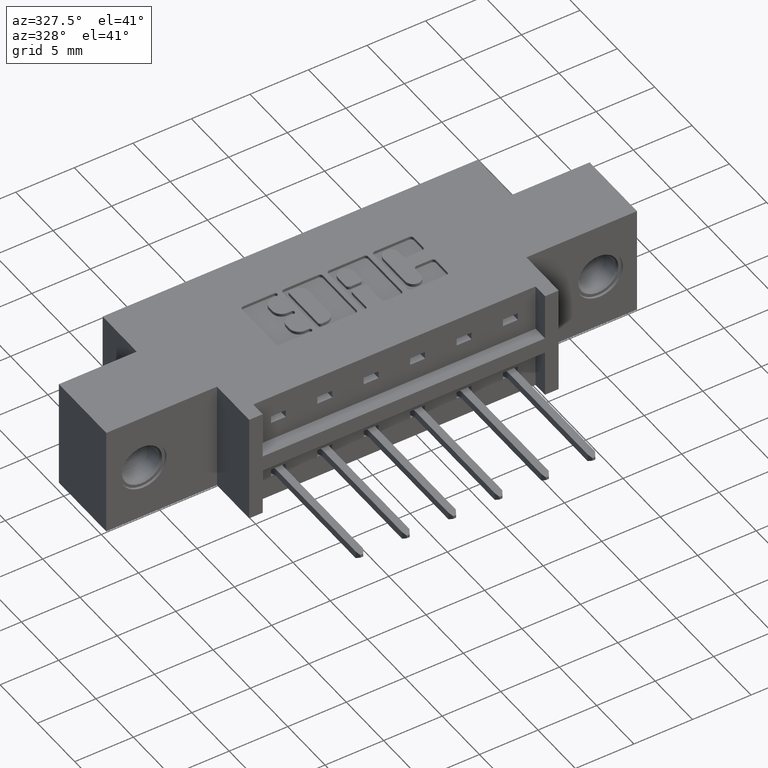
[diagram: clean part render]
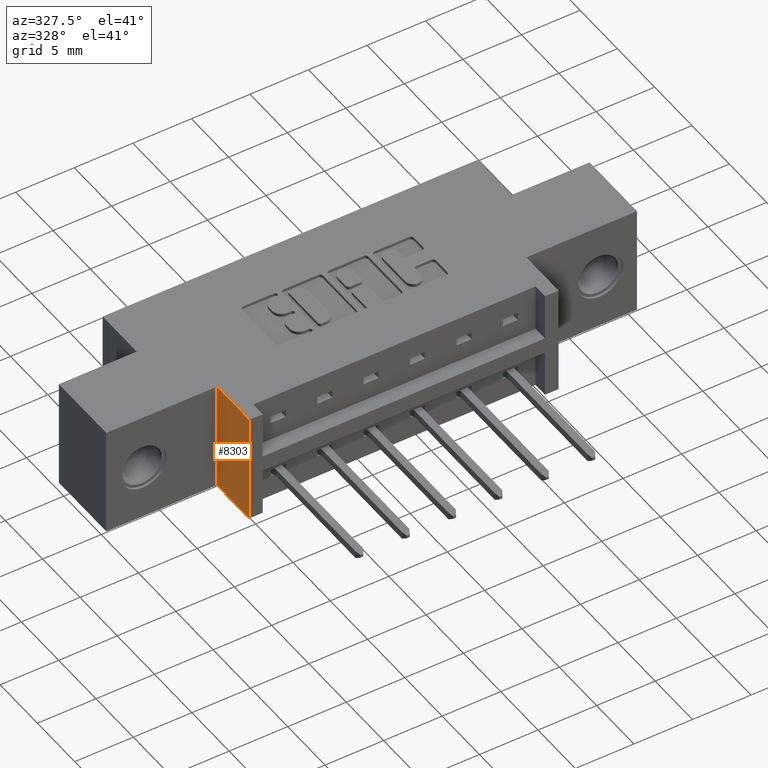
[diagram: same view with one face highlighted and labeled with its STEP entity id]
A machine part, auxiliary view. The second image highlights one B-rep face of the part: STEP entity #8303.
In plain terms, the highlighted planar face has unit normal (1, 0, -0).
Its self-contained STEP definition (entity closure, byte-faithful):
#32 = CARTESIAN_POINT ( 'NONE',  ( 0.3720000000000002700, 0.0000000000000000000, 2.303612362224999500E-015 ) ) ;
#258 = EDGE_CURVE ( 'NONE', #4536, #4793, #8366, .T. ) ;
#510 = DIRECTION ( 'NONE',  ( 4.430023773509614800E-015, 0.0000000000000000000, 1.000000000000000000 ) ) ;
#561 = EDGE_CURVE ( 'NONE', #5541, #4793, #1787, .T. ) ;
#679 = DIRECTION ( 'NONE',  ( 4.430023773509614800E-015, 0.0000000000000000000, 1.000000000000000000 ) ) ;
#719 = DIRECTION ( 'NONE',  ( 1.000000000000000000, 0.0000000000000000000, -4.430023773509614800E-015 ) ) ;
#759 = ORIENTED_EDGE ( 'NONE', *, *, #5513, .T. ) ;
#1228 = CARTESIAN_POINT ( 'NONE',  ( 0.3719999999999993300, 0.0000000000000000000, -0.3700000000000000000 ) ) ;
#1263 = DIRECTION ( 'NONE',  ( -0.0000000000000000000, -1.000000000000000000, -0.0000000000000000000 ) ) ;
#1459 = CARTESIAN_POINT ( 'NONE',  ( 0.3719999999999986700, 0.1699999999999999800, -0.3699999999999977800 ) ) ;
#1787 = LINE ( 'NONE', #8959, #9487 ) ;
#2397 = CARTESIAN_POINT ( 'NONE',  ( 0.3720000000000002700, 0.1699999999999999800, 2.303612362224999500E-015 ) ) ;
#3698 = PLANE ( 'NONE',  #3723 ) ;
#3723 = AXIS2_PLACEMENT_3D ( 'NONE', #5240, #719, #6025 ) ;
#3741 = EDGE_LOOP ( 'NONE', ( #9295, #4099, #4310, #759 ) ) ;
#3852 = VERTEX_POINT ( 'NONE', #4826 ) ;
#4099 = ORIENTED_EDGE ( 'NONE', *, *, #561, .F. ) ;
#4310 = ORIENTED_EDGE ( 'NONE', *, *, #5836, .F. ) ;
#4536 = VERTEX_POINT ( 'NONE', #1228 ) ;
#4570 = LINE ( 'NONE', #1459, #6377 ) ;
#4793 = VERTEX_POINT ( 'NONE', #32 ) ;
#4826 = CARTESIAN_POINT ( 'NONE',  ( 0.3719999999999986700, 0.1699999999999999800, -0.3699999999999977800 ) ) ;
#5038 = CARTESIAN_POINT ( 'NONE',  ( 0.3719999999999986700, 0.1699999999999999800, -0.3699999999999977800 ) ) ;
#5166 = CARTESIAN_POINT ( 'NONE',  ( 0.3719999999999986700, 0.0000000000000000000, -0.3699999999999977800 ) ) ;
#5240 = CARTESIAN_POINT ( 'NONE',  ( 0.3719999999999986700, 0.1699999999999999800, -0.3699999999999977800 ) ) ;
#5513 = EDGE_CURVE ( 'NONE', #3852, #4536, #4570, .T. ) ;
#5541 = VERTEX_POINT ( 'NONE', #2397 ) ;
#5836 = EDGE_CURVE ( 'NONE', #3852, #5541, #7538, .T. ) ;
#6025 = DIRECTION ( 'NONE',  ( -4.430023773509614800E-015, 0.0000000000000000000, -1.000000000000000000 ) ) ;
#6377 = VECTOR ( 'NONE', #1263, 39.37007874015748100 ) ;
#6403 = VECTOR ( 'NONE', #679, 39.37007874015748100 ) ;
#7538 = LINE ( 'NONE', #5038, #9462 ) ;
#8303 = ADVANCED_FACE ( 'NONE', ( #9271 ), #3698, .F. ) ;
#8366 = LINE ( 'NONE', #5166, #6403 ) ;
#8896 = DIRECTION ( 'NONE',  ( -0.0000000000000000000, -1.000000000000000000, -0.0000000000000000000 ) ) ;
#8959 = CARTESIAN_POINT ( 'NONE',  ( 0.3720000000000002700, 0.1699999999999999800, 2.303612362224999500E-015 ) ) ;
#9271 = FACE_OUTER_BOUND ( 'NONE', #3741, .T. ) ;
#9295 = ORIENTED_EDGE ( 'NONE', *, *, #258, .T. ) ;
#9462 = VECTOR ( 'NONE', #510, 39.37007874015748100 ) ;
#9487 = VECTOR ( 'NONE', #8896, 39.37007874015748100 ) ;